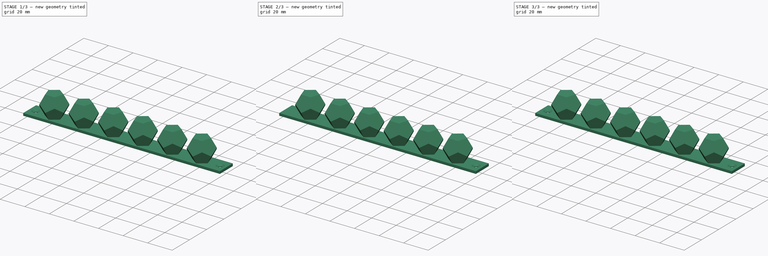
[diagram: build sequence overview — one tinted view per stage of 3, left to right]
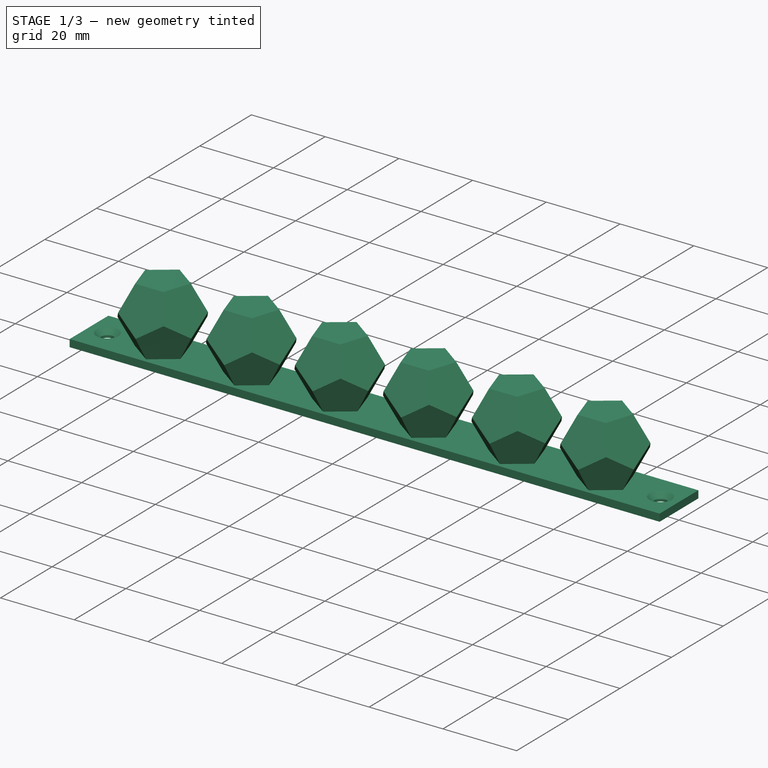
[diagram: stage 1 of 3 — iso view after this stage's code; geometry added in this stage tinted green]
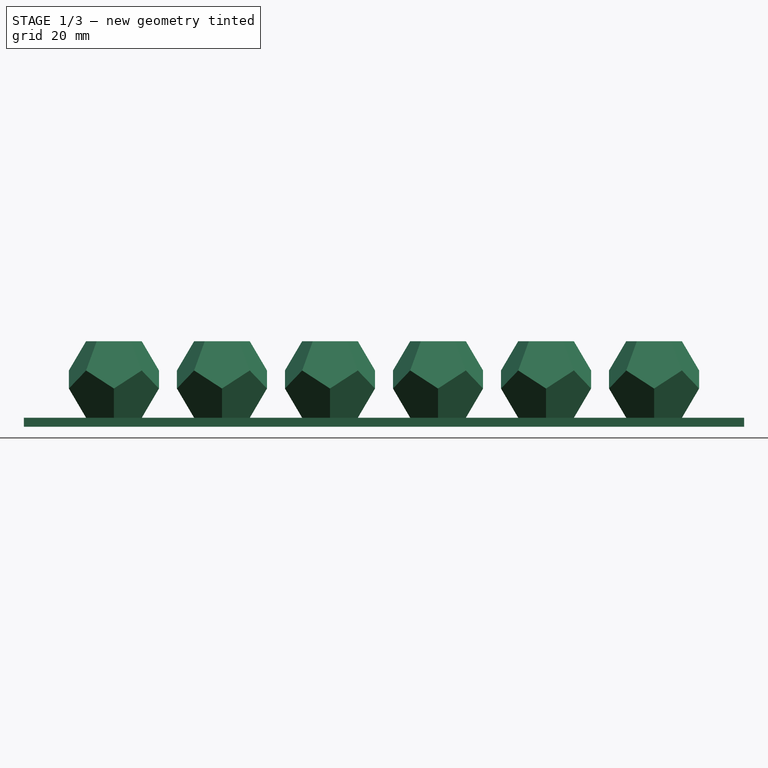
[diagram: stage 1 of 3 — front view after this stage's code; geometry added in this stage tinted green]
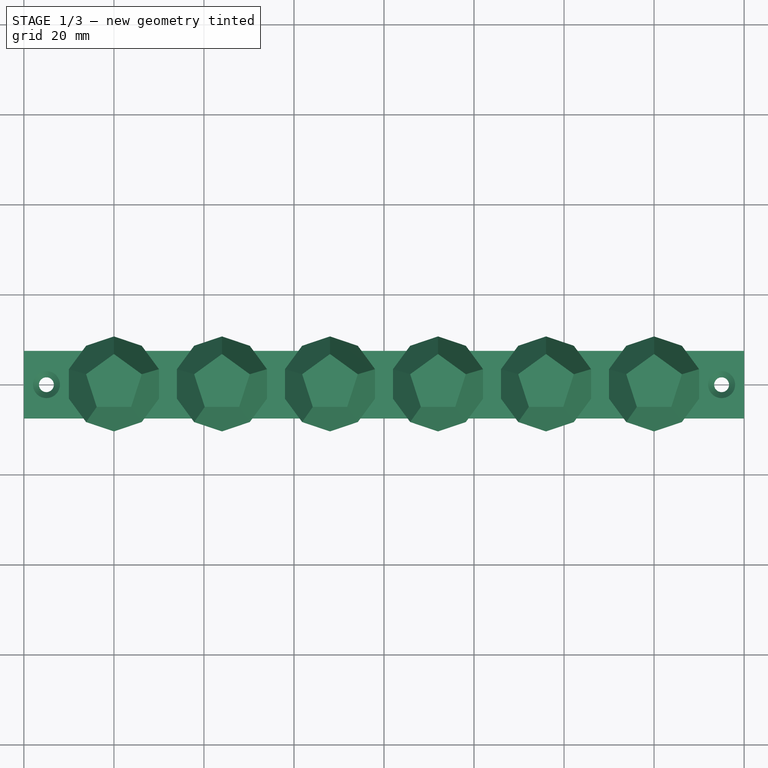
[diagram: stage 1 of 3 — top view after this stage's code; geometry added in this stage tinted green]
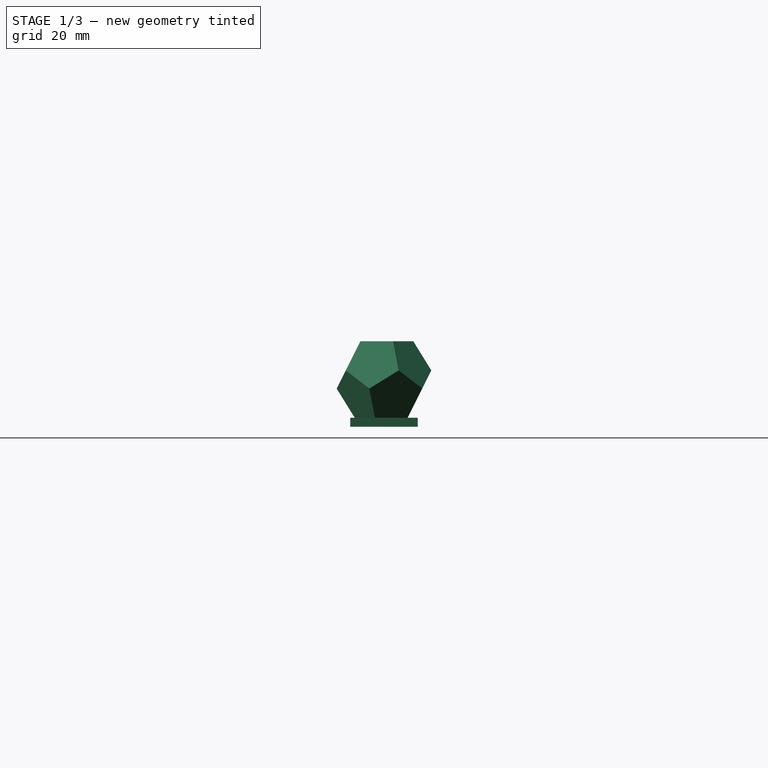
[diagram: stage 1 of 3 — right view after this stage's code; geometry added in this stage tinted green]
FCSTD DOCUMENT  (FreeCAD 0.18R4 (GitTag))
Label: dodecaedros
License: All rights reserved
LicenseURL: http://en.wikipedia.org/wiki/All_rights_reserved
objects: Part::Feature×4, Part::FeaturePython×2, Sketcher::SketchObject×2, Part::MultiFuse×2, Part::Box×1, Spreadsheet::Sheet×1, App::DocumentObjectGroup×1, PartDesign::Pad×1, PartDesign::Hole×1, PartDesign::Body×1
note: 16 computed .brp shape members not serialized (recipe doc carries the construction recipe); baked Part::Feature solids carry a one-line shape summary decoded from their .brp

FEATURE [PartDesign::Body] Body
  Group = -> [Pad,Hole]
  Origin = -> Origin
  Tip = -> Hole
FEATURE [Part::Feature] Body001
  shape: bbox 160 x 15 x 2 mm, 10 faces (baked)
FEATURE [Part::Feature] Array001
  shape: bbox 140 x 21.03 x 17.01 mm, 72 faces, 6 solids (baked)
FEATURE [Part::MultiFuse] Fusion  label="5_cables"
  Refine = true
  Shapes = -> [Body001,Array001]
FEATURE [Part::Feature] Array002
  shape: bbox 44 x 21.03 x 17.01 mm, 24 faces, 2 solids (baked)
FEATURE [Part::Feature] Body002
  shape: bbox 64 x 15 x 2 mm, 10 faces (baked)
FEATURE [Part::MultiFuse] Fusion001  label="2_cables"
  Refine = true
  Shapes = -> [Array002,Body002]
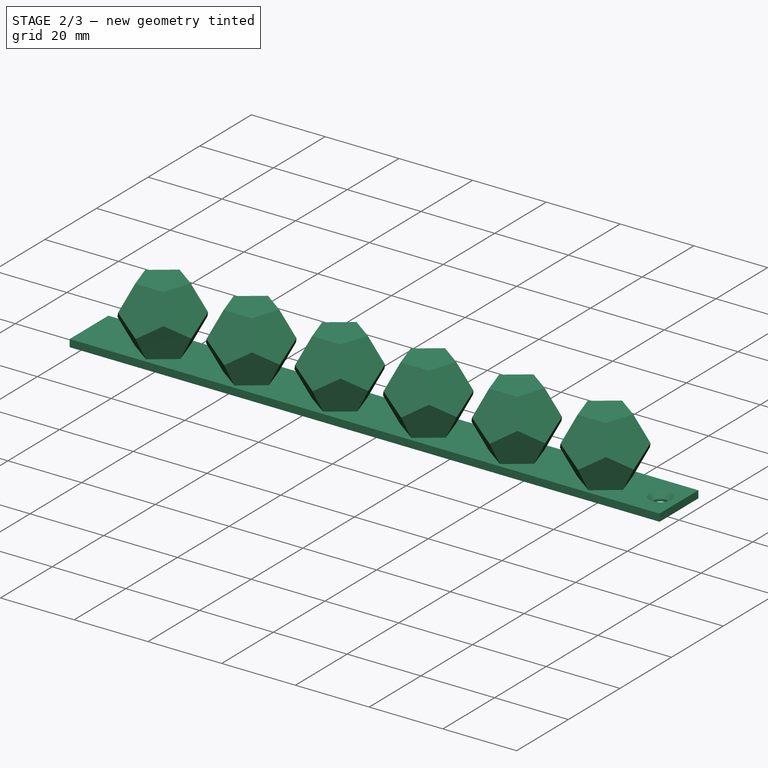
[diagram: stage 2 of 3 — iso view after this stage's code; geometry added in this stage tinted green]
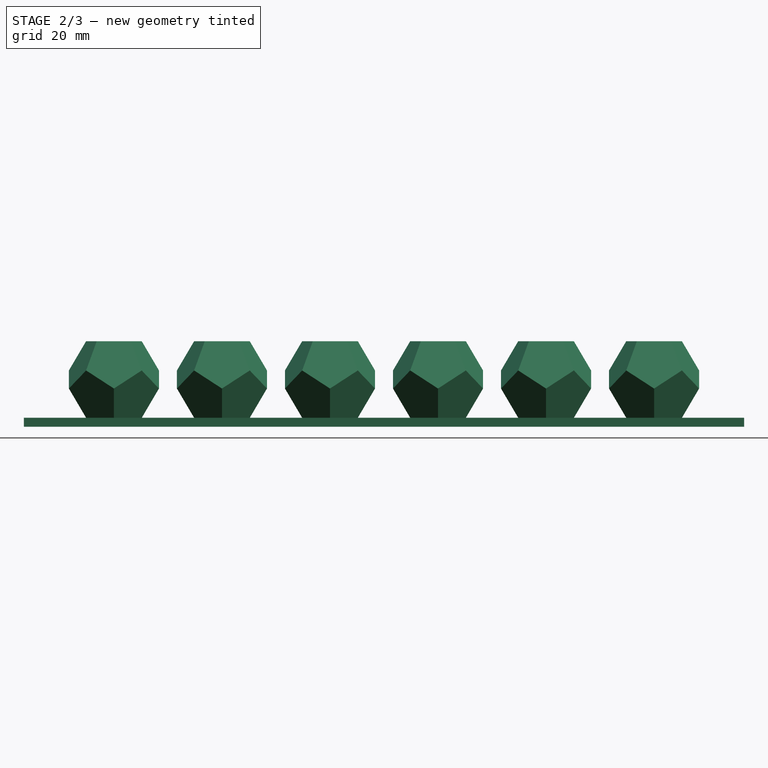
[diagram: stage 2 of 3 — front view after this stage's code; geometry added in this stage tinted green]
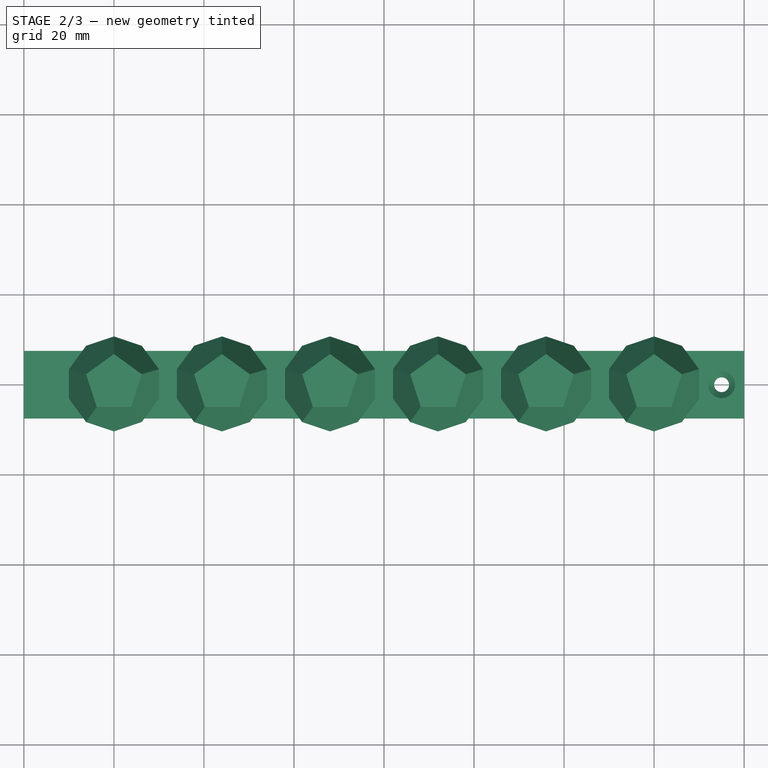
[diagram: stage 2 of 3 — top view after this stage's code; geometry added in this stage tinted green]
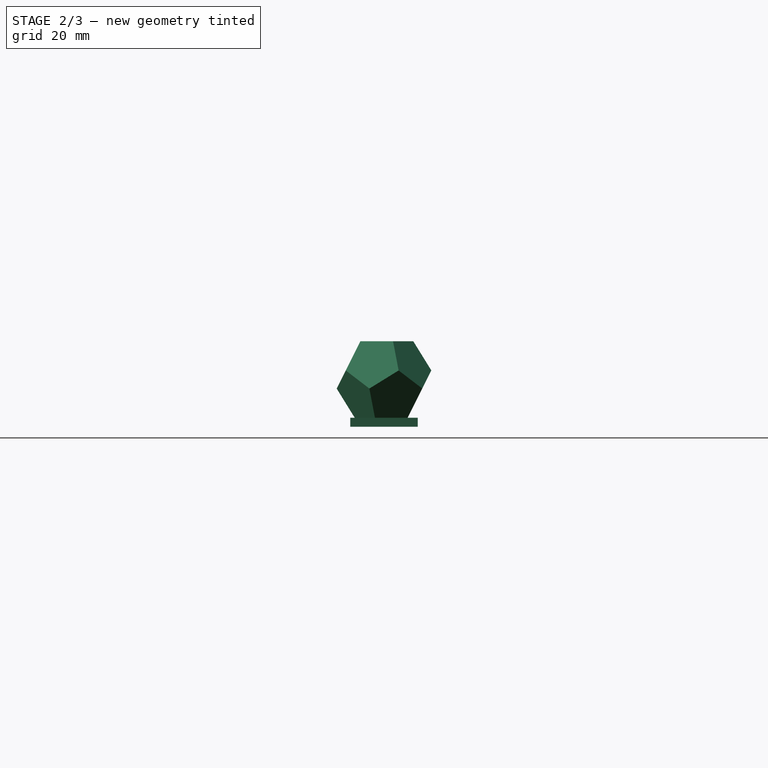
[diagram: stage 2 of 3 — right view after this stage's code; geometry added in this stage tinted green]
FEATURE [Part::FeaturePython] Dodecahedron  # WARN: FeaturePython — macro-defined, semantics opaque (R4)
  Placement = pos=(0,0,0) rot=(0,0,1;0.314159rad)
  Radius = 10.7056
  Side = 7.64
FEATURE [Part::Box] Box  label="Cube"
  AttacherType = Attacher::AttachEngine3D
  Height = 2
  Length = 64
  Placement = pos=(-20,-7.5,-10.51) rot=(0,0,1;0rad)
  Width = 15
  expr: Length = tabla.total
FEATURE [Part::FeaturePython] Array  # Draft array (typed FeaturePython)
  Angle = 360
  ArrayType = 0
  Axis = (0,0,1)
  Base = -> Dodecahedron
  Center = (0,0,0)
  Fuse = false
  IntervalAxis = (0,0,0)
  IntervalX = (24,0,0)
  IntervalY = (0,1,0)
  IntervalZ = (0,0,1)
  NumberPolar = 1
  NumberX = 2
  NumberY = 1
  NumberZ = 1
  expr: NumberX = tabla.q
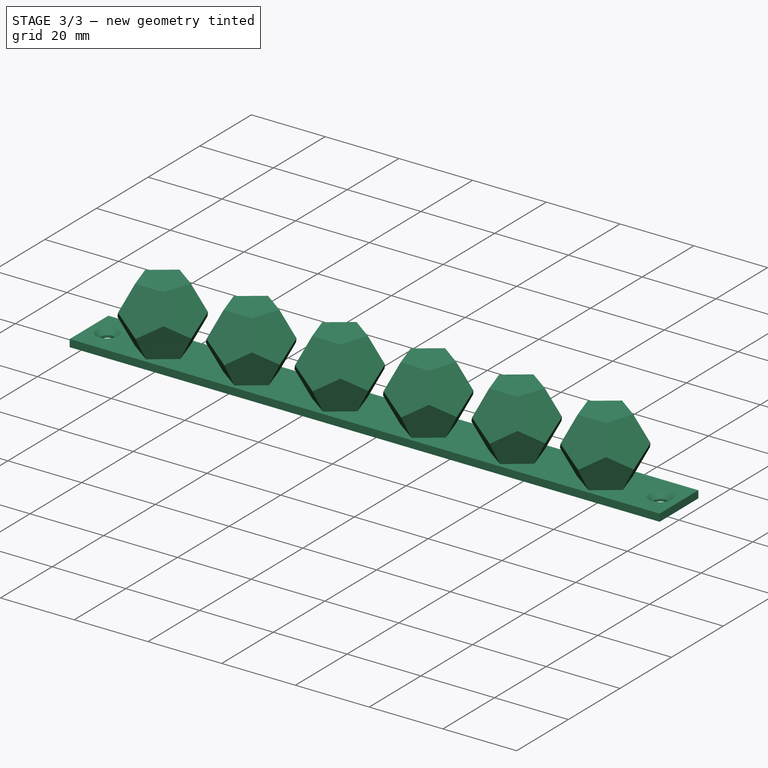
[diagram: stage 3 of 3 — iso view after this stage's code; geometry added in this stage tinted green]
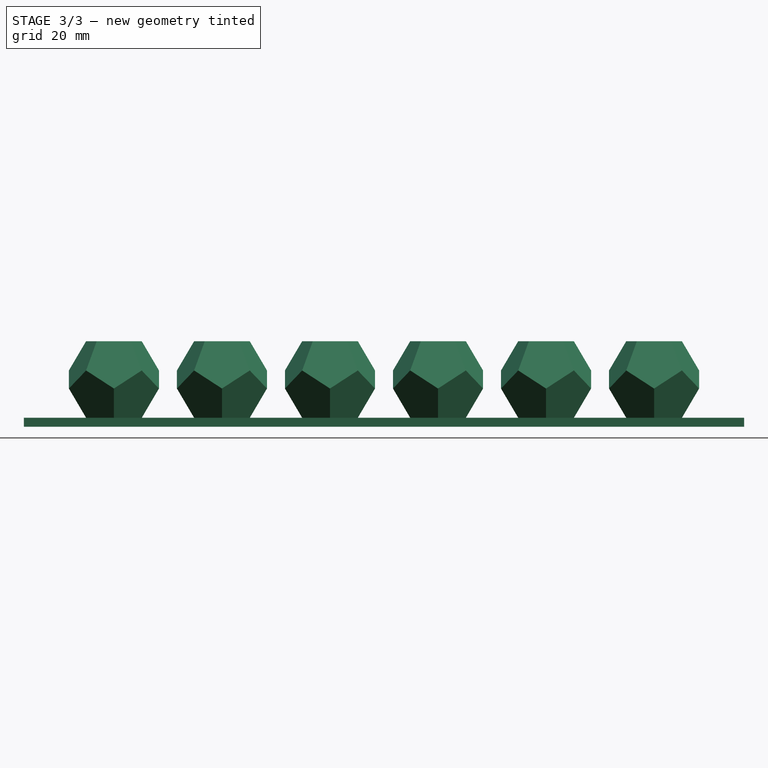
[diagram: stage 3 of 3 — front view after this stage's code; geometry added in this stage tinted green]
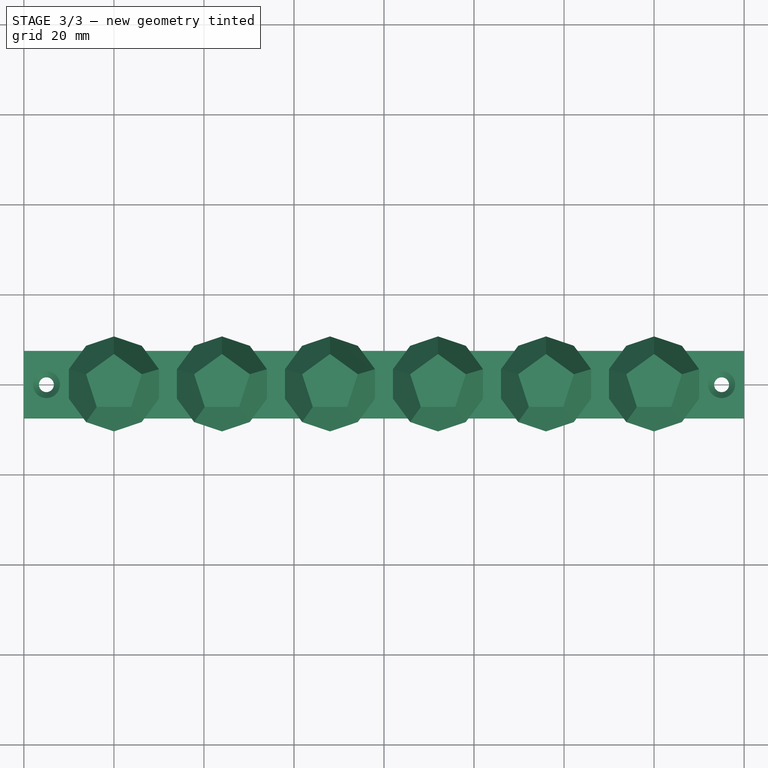
[diagram: stage 3 of 3 — top view after this stage's code; geometry added in this stage tinted green]
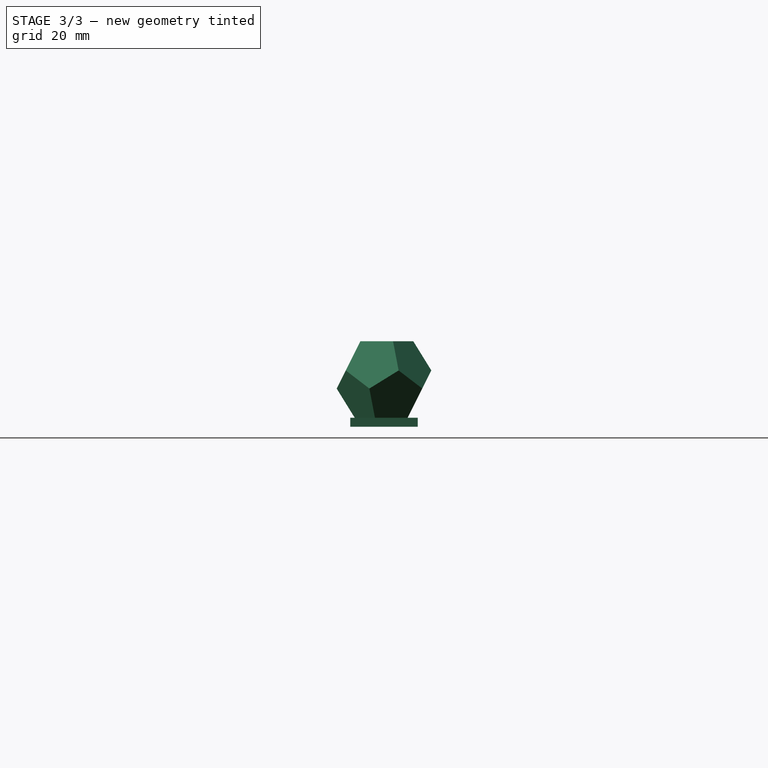
[diagram: stage 3 of 3 — right view after this stage's code; geometry added in this stage tinted green]
FEATURE [Spreadsheet::Sheet] Spreadsheet  label="tabla"
  cells = A1=medida dodecaedro; B1(d)=20; A2=lareral; B2(la)=10; A3=CANTIDAD; B3(q)=2; C3(qe)==tabla.q - 1; A4=medida espacio; B4(esp)=4; A5=total dodecaedros; B5(t1)==tabla.d * tabla.q; A6=espacios; B6(t2)==tabla.esp * tabla.qe; A7=larerales; B7(t3)==tabla.la * 2; A8=total; B8(total)==tabla.t1 + tabla.t2 + tabla.t3; A10=separacion; B10(total2)==tabla.total - 10
FEATURE [Sketcher::SketchObject] Sketch  label="Sketch_agujeros"
  ExternalGeometry = -> [Box]
  MapMode = 5
  Placement = pos=(-20,-7.5,-8.51) rot=(0,0,1;0rad)
  Support = -> [Box]
  expr: Constraints[3] = tabla.total2
  sketch-geometry (4):
    g0: GeomPoint X=5 Y=7.5 Z=0
    g1: GeomPoint X=59 Y=7.5 Z=0
    g2: Circle CenterX=5 CenterY=7.5 CenterZ=0 NormalX=0 NormalY=0 NormalZ=1 AngleXU=0 Radius=1.5
    g3: Circle CenterX=59 CenterY=7.5 CenterZ=0 NormalX=0 NormalY=0 NormalZ=1 AngleXU=0 Radius=1.5
  constraints (8):
    c: DistanceY(g-1,g0) = 7.5
    c: Horizontal(g0,g1)
    c: DistanceX(g-1,g0) = 5
    c: DistanceX(g0,g1) = 54
    c: Coincident(g2,g0)
    c: Coincident(g3,g1)
    c: Radius(g2) = 1.5
    c: Equal(g2,g3)
FEATURE [Sketcher::SketchObject] Sketch001  label="Sketch_base"
  ExternalGeometry = -> [Array,Box]
  MapMode = 5
  Placement = pos=(-20,-7.5,-10.51) rot=(1,0,0;3.14159rad)
  Support = -> [Box]
  sketch-geometry (4):
    g0: LineSegment StartX=0 StartY=0 StartZ=0 EndX=64 EndY=0 EndZ=0
    g1: LineSegment StartX=64 StartY=0 StartZ=0 EndX=64 EndY=-15 EndZ=0
    g2: LineSegment StartX=64 StartY=-15 StartZ=0 EndX=0 EndY=-15 EndZ=0
    g3: LineSegment StartX=0 StartY=-15 StartZ=0 EndX=0 EndY=0 EndZ=0
  constraints (10):
    c: Coincident(g0,g1)
    c: Coincident(g1,g2)
    c: Coincident(g2,g3)
    c: Coincident(g3,g0)
    c: Horizontal(g0)
    c: Horizontal(g2)
    c: Vertical(g1)
    c: Vertical(g3)
    c: Coincident(g0,g-1)
    c: Coincident(g1,g-5)
FEATURE [App::DocumentObjectGroup] Group  label="sketches"
  Group = -> [Sketch,Sketch001]
FEATURE [PartDesign::Pad] Pad
  Length = 2
  Length2 = 100
  Placement = pos=(-20,-7.5,-10.51) rot=(0,0,1;0rad)
  Profile = -> Sketch001
  Refine = true
  Reversed = true
  Type = 0
FEATURE [PartDesign::Hole] Hole
  BaseFeature = -> Pad
  Depth = 25
  DepthType = 0
  Diameter = 3.3
  DrillPoint = 1
  DrillPointAngle = 118
  HoleCutCountersinkAngle = 90
  HoleCutDepth = 0
  HoleCutDiameter = 6
  HoleCutType = 2
  ModelActualThread = false
  Placement = pos=(-20,-7.5,-10.51) rot=(0,0,1;0rad)
  Profile = -> Sketch
  Refine = true
  Tapered = false
  TaperedAngle = 90
  ThreadAngle = 0
  ThreadClass = 0
  ThreadCutOffInner = 0
  ThreadCutOffOuter = 0
  ThreadDirection = 0
  ThreadFit = 0
  ThreadPitch = 0
  ThreadSize = 3
  ThreadType = 1
  Threaded = false
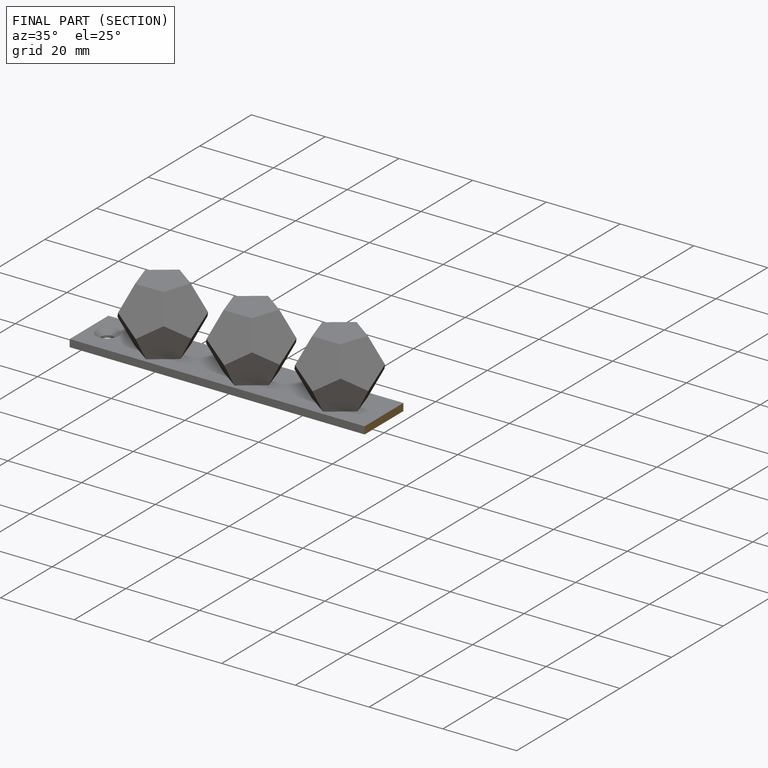
[diagram: finished part — half-section view (interior)]
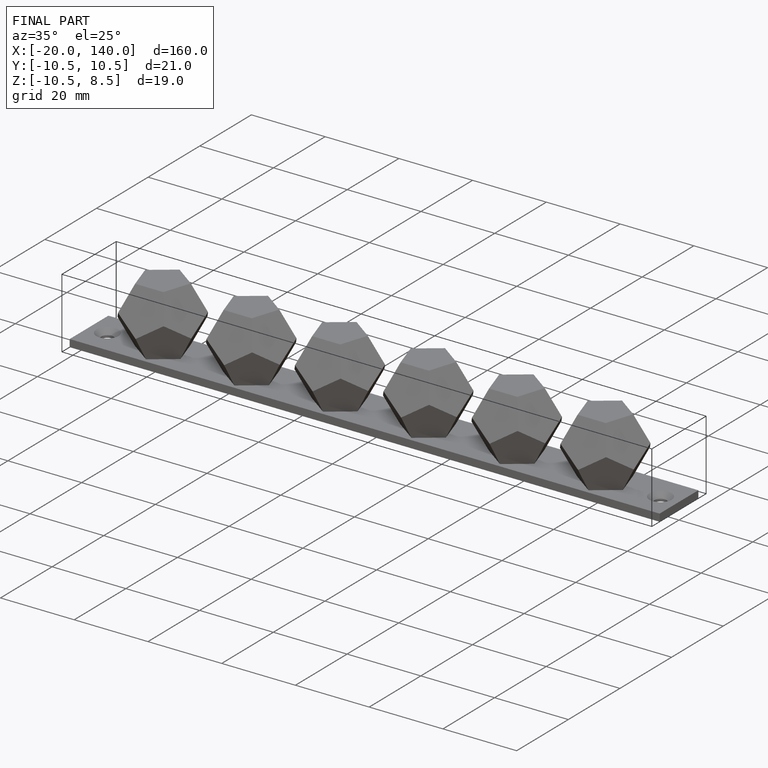
[diagram: finished part — iso view with bounding-box wireframe]
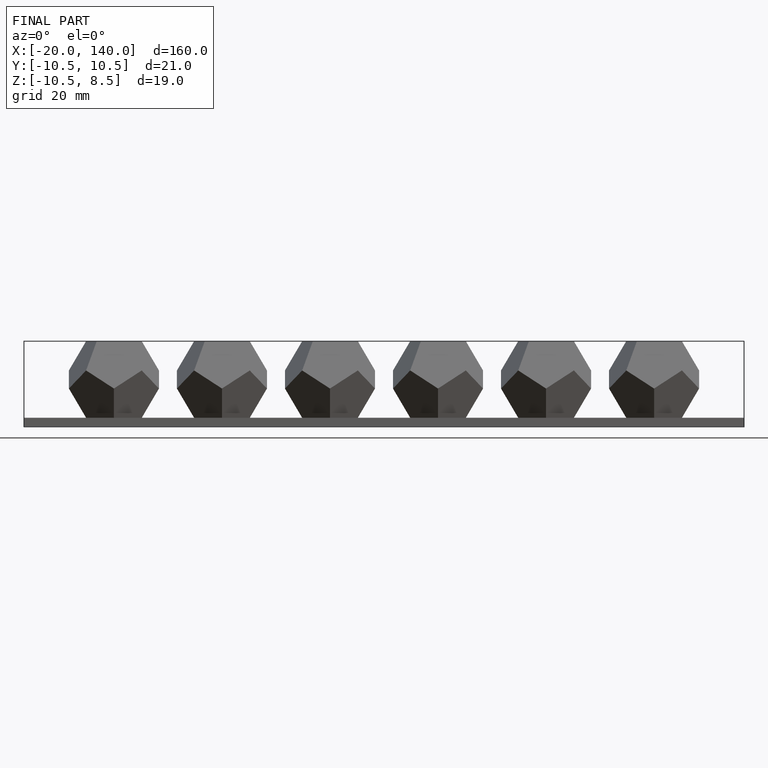
[diagram: finished part — front view with bounding-box wireframe]
